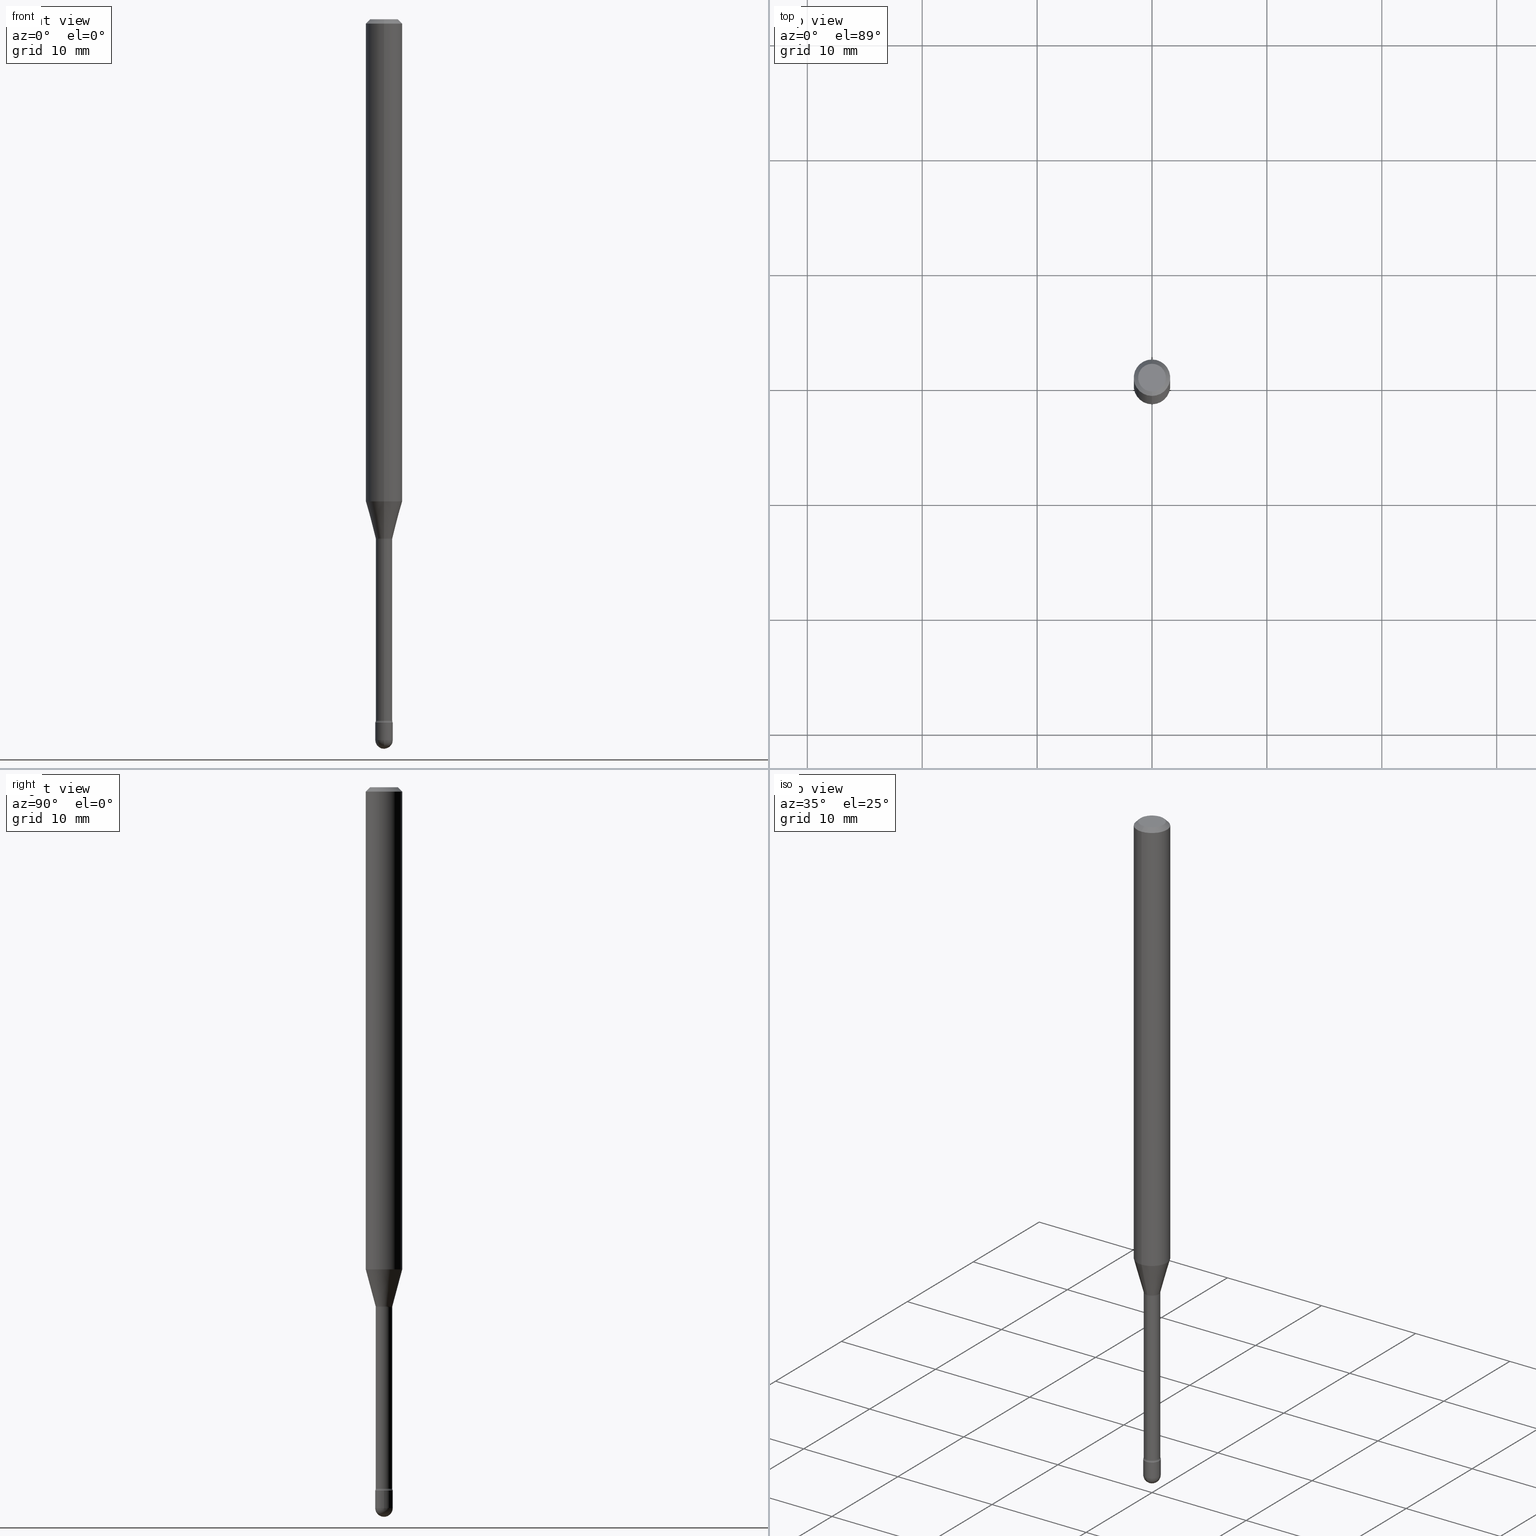
[diagram: canonical four-view strip — front | top / right | iso, engineering-drawing reading convention]
A machine part, canonical four-view strip (front | top / right | iso — engineering-drawing reading convention). The complete STEP part file that produces these views, byte-faithful:
ISO-10303-21;
HEADER;
FILE_DESCRIPTION (( 'STEP AP203' ),
    '1' );
FILE_NAME ('09490.STEP',
    '2024-04-09T23:47:46',
    ( '' ),
    ( '' ),
    'SwSTEP 2.0',
    'SolidWorks 2023',
    '' );
FILE_SCHEMA (( 'CONFIG_CONTROL_DESIGN' ));
ENDSEC;

DATA;
#1 = ORIENTED_EDGE ( 'NONE', *, *, #191, .F. ) ;
#2 = VECTOR ( 'NONE', #71, 39.37007874015748143 ) ;
#3 = AXIS2_PLACEMENT_3D ( 'NONE', #356, #314, #350 ) ;
#4 = CIRCLE ( 'NONE', #286, 0.01499999999999990750 ) ;
#5 = VERTEX_POINT ( 'NONE', #282 ) ;
#6 = CALENDAR_DATE ( 2024, 9, 4 ) ;
#7 = ORIENTED_EDGE ( 'NONE', *, *, #363, .F. ) ;
#8 = ORIENTED_EDGE ( 'NONE', *, *, #543, .T. ) ;
#9 = AXIS2_PLACEMENT_3D ( 'NONE', #182, #540, #53 ) ;
#10 = EDGE_CURVE ( 'NONE', #48, #227, #523, .T. ) ;
#11 = ORIENTED_EDGE ( 'NONE', *, *, #485, .F. ) ;
#12 = CONICAL_SURFACE ( 'NONE', #293, 0.02871111260566398468, 0.2617993877991500740 ) ;
#13 = ORIENTED_EDGE ( 'NONE', *, *, #194, .F. ) ;
#14 = CARTESIAN_POINT ( 'NONE',  ( 4.364351673553919652E-16, 0.06249999999999995143, -0.01500000000000030129 ) ) ;
#15 = DIRECTION ( 'NONE',  ( -2.445430871415166747E-29, 3.491535663592855480E-15, 1.000000000000000000 ) ) ;
#16 = DIRECTION ( 'NONE',  ( -6.982962677686265133E-15, -1.000000000000000000, 0.000000000000000000 ) ) ;
#17 = DIRECTION ( 'NONE',  ( -2.445430871415166747E-29, 3.491535663592855480E-15, 1.000000000000000000 ) ) ;
#18 = APPROVAL_ROLE ( '' ) ;
#19 = DIRECTION ( 'NONE',  ( 1.000000000000000000, -6.982962677686265922E-15, 4.883557194083112340E-29 ) ) ;
#20 = EDGE_CURVE ( 'NONE', #223, #5, #414, .T. ) ;
#21 = DIRECTION ( 'NONE',  ( -2.445430871415166747E-29, 3.491535663592855480E-15, 1.000000000000000000 ) ) ;
#22 = DATE_AND_TIME ( #65, #290 ) ;
#23 = EDGE_CURVE ( 'NONE', #231, #301, #262, .T. ) ;
#24 = PERSON_AND_ORGANIZATION ( #77, #141 ) ;
#25 = CARTESIAN_POINT ( 'NONE',  ( 4.039828952651802244E-29, -5.767984295886507210E-15, -1.651990657300387966 ) ) ;
#26 = AXIS2_PLACEMENT_3D ( 'NONE', #164, #161, #83 ) ;
#27 = CARTESIAN_POINT ( 'NONE',  ( -4.364351673553912750E-16, -0.06250000000000005551, -0.01499999999999986587 ) ) ;
#28 = LINE ( 'NONE', #367, #508 ) ;
#29 = CLOSED_SHELL ( 'NONE', ( #97, #406, #155, #518, #312 ) ) ;
#30 = ORIENTED_EDGE ( 'NONE', *, *, #109, .T. ) ;
#31 = DIRECTION ( 'NONE',  ( -6.982962677686266711E-15, -1.000000000000000000, 0.000000000000000000 ) ) ;
#32 = DIRECTION ( 'NONE',  ( -6.982962677686265922E-15, -1.000000000000000000, 3.491535663592855086E-15 ) ) ;
#33 = DIRECTION ( 'NONE',  ( 1.000000000000000000, -6.982962677686299054E-15, 0.000000000000000000 ) ) ;
#34 = DIRECTION ( 'NONE',  ( 6.982962677686265922E-15, 1.000000000000000000, -3.491535663592855086E-15 ) ) ;
#35 = AXIS2_PLACEMENT_3D ( 'NONE', #242, #424, #452 ) ;
#36 = DATE_AND_TIME ( #6, #168 ) ;
#37 = ADVANCED_FACE ( 'NONE', ( #505 ), #12, .T. ) ;
#38 = ORIENTED_EDGE ( 'NONE', *, *, #504, .F. ) ;
#39 = CARTESIAN_POINT ( 'NONE',  ( -2.004886277601557809E-16, -0.02871111260567019152, -1.778092501787273294 ) ) ;
#40 = LINE ( 'NONE', #562, #351 ) ;
#41 = EDGE_LOOP ( 'NONE', ( #431, #43, #486, #175 ) ) ;
#42 = LENGTH_MEASURE_WITH_UNIT ( LENGTH_MEASURE( 0.02539999999999999897 ), #147 );
#43 = ORIENTED_EDGE ( 'NONE', *, *, #191, .T. ) ;
#44 = LOCAL_TIME ( 19, 47, 46.00000000000000000, #134 ) ;
#45 = EDGE_LOOP ( 'NONE', ( #426, #355, #379, #136 ) ) ;
#46 = DIRECTION ( 'NONE',  ( -2.445430871415166747E-29, 3.491535663592855480E-15, 1.000000000000000000 ) ) ;
#47 = VECTOR ( 'NONE', #471, 39.37007874015748143 ) ;
#48 = VERTEX_POINT ( 'NONE', #90 ) ;
#49 = MANIFOLD_SOLID_BREP ( 'Body-Move/Copy2[1]', #29 ) ;
#50 = FACE_OUTER_BOUND ( 'NONE', #260, .T. ) ;
#51 = VERTEX_POINT ( 'NONE', #249 ) ;
#52 = ORIENTED_EDGE ( 'NONE', *, *, #391, .F. ) ;
#53 = DIRECTION ( 'NONE',  ( 6.982962677686265922E-15, 1.000000000000000000, -3.483106191921935554E-15 ) ) ;
#54 = CARTESIAN_POINT ( 'NONE',  ( 5.876156823005488124E-29, -8.389594600327224115E-15, -2.402875394747777893 ) ) ;
#55 = FACE_OUTER_BOUND ( 'NONE', #247, .T. ) ;
#56 = EDGE_CURVE ( 'NONE', #420, #274, #533, .T. ) ;
#57 = EDGE_LOOP ( 'NONE', ( #347, #531, #352, #139 ) ) ;
#58 = CONICAL_SURFACE ( 'NONE', #111, 0.02871111260566398468, 0.2617993877991500740 ) ;
#59 = DIRECTION ( 'NONE',  ( -4.851104656540964275E-15, -0.7071067811865500152, -0.7071067811865450192 ) ) ;
#60 = DIRECTION ( 'NONE',  ( -6.982962677686265922E-15, -1.000000000000000000, 3.491535663592855086E-15 ) ) ;
#61 = CARTESIAN_POINT ( 'NONE',  ( 6.040307951277287977E-29, -8.623958906942569995E-15, -2.470000000000000195 ) ) ;
#62 = DIRECTION ( 'NONE',  ( -6.982962677686265922E-15, -1.000000000000000000, 3.491535663592855086E-15 ) ) ;
#63 = PLANE ( 'NONE',  #464 ) ;
#64 = LINE ( 'NONE', #201, #123 ) ;
#65 = CALENDAR_DATE ( 2024, 9, 4 ) ;
#66 = AXIS2_PLACEMENT_3D ( 'NONE', #246, #148, #250 ) ;
#67 = CARTESIAN_POINT ( 'NONE',  ( -2.004886277601557809E-16, -0.02871111260567019152, -1.778092501787273294 ) ) ;
#68 = DIRECTION ( 'NONE',  ( -2.445430871415166747E-29, 3.491535663592855086E-15, 1.000000000000000000 ) ) ;
#69 = FACE_OUTER_BOUND ( 'NONE', #100, .T. ) ;
#70 = DATE_AND_TIME ( #254, #489 ) ;
#71 = DIRECTION ( 'NONE',  ( -2.445468806185136877E-29, 3.491481338843145188E-15, 1.000000000000000000 ) ) ;
#72 = AXIS2_PLACEMENT_3D ( 'NONE', #76, #368, #498 ) ;
#73 = AXIS2_PLACEMENT_3D ( 'NONE', #25, #284, #448 ) ;
#74 = ORIENTED_EDGE ( 'NONE', *, *, #272, .T. ) ;
#75 = DIRECTION ( 'NONE',  ( -6.982962677686265133E-15, -1.000000000000000000, 0.000000000000000000 ) ) ;
#76 = CARTESIAN_POINT ( 'NONE',  ( 0.000000000000000000, 0.000000000000000000, 0.000000000000000000 ) ) ;
#77 = PERSON ( 'UNSPECIFIED', 'UNSPECIFIED', 'UNSPECIFIED', ('UNSPECIFIED'), ('UNSPECIFIED'), ('UNSPECIFIED') ) ;
#78 = AXIS2_PLACEMENT_3D ( 'NONE', #157, #179, #225 ) ;
#79 = EDGE_LOOP ( 'NONE', ( #330, #30, #96, #13 ) ) ;
#80 = ORIENTED_EDGE ( 'NONE', *, *, #479, .F. ) ;
#81 = CARTESIAN_POINT ( 'NONE',  ( 5.893579822906179826E-29, -8.414470026611981678E-15, -2.410000000000000142 ) ) ;
#82 = EDGE_CURVE ( 'NONE', #344, #5, #423, .T. ) ;
#83 = DIRECTION ( 'NONE',  ( 6.982962677686265922E-15, 1.000000000000000000, 0.000000000000000000 ) ) ;
#84 = DATE_TIME_ROLE ( 'classification_date' ) ;
#85 = FACE_OUTER_BOUND ( 'NONE', #45, .T. ) ;
#86 = DESIGN_CONTEXT ( 'detailed design', #545, 'design' ) ;
#87 = AXIS2_PLACEMENT_3D ( 'NONE', #54, #519, #435 ) ;
#88 = DIRECTION ( 'NONE',  ( -6.982962677686265133E-15, -1.000000000000000000, 0.000000000000000000 ) ) ;
#89 = ORIENTED_EDGE ( 'NONE', *, *, #56, .T. ) ;
#90 = CARTESIAN_POINT ( 'NONE',  ( 2.094888803306483442E-16, 0.02999999999999137038, -2.470000000000000195 ) ) ;
#91 = ORIENTED_EDGE ( 'NONE', *, *, #112, .T. ) ;
#92 = EDGE_CURVE ( 'NONE', #5, #223, #451, .T. ) ;
#93 = EDGE_CURVE ( 'NONE', #344, #51, #4, .T. ) ;
#94 = ORIENTED_EDGE ( 'NONE', *, *, #82, .F. ) ;
#95 = DIRECTION ( 'NONE',  ( -2.438088387897960049E-29, 3.491481338843145188E-15, 1.000000000000000000 ) ) ;
#96 = ORIENTED_EDGE ( 'NONE', *, *, #532, .F. ) ;
#97 = ADVANCED_FACE ( 'NONE', ( #204 ), #294, .T. ) ;
#98 = CC_DESIGN_PERSON_AND_ORGANIZATION_ASSIGNMENT ( #565, #167, ( #240 ) ) ;
#99 = VERTEX_POINT ( 'NONE', #39 ) ;
#100 = EDGE_LOOP ( 'NONE', ( #313, #525 ) ) ;
#101 = CARTESIAN_POINT ( 'NONE',  ( -1.969195475106951401E-16, -0.02820000000000855503, -2.402875394747777893 ) ) ;
#102 = CARTESIAN_POINT ( 'NONE',  ( 4.039828952651802244E-29, -5.767984295886507210E-15, -1.651990657300387966 ) ) ;
#103 = VERTEX_POINT ( 'NONE', #469 ) ;
#104 = CARTESIAN_POINT ( 'NONE',  ( -1.169113584055446105E-44, 1.669184350826100908E-30, 4.780733988912460139E-16 ) ) ;
#105 = EDGE_CURVE ( 'NONE', #301, #231, #174, .T. ) ;
#106 = CIRCLE ( 'NONE', #548, 0.03000000000000000583 ) ;
#107 = DIRECTION ( 'NONE',  ( -6.982962677686265922E-15, -1.000000000000000000, 0.000000000000000000 ) ) ;
#108 = CARTESIAN_POINT ( 'NONE',  ( 2.131628207280886208E-16, 0.02999999999999152997, -2.410000000000000142 ) ) ;
#109 = EDGE_CURVE ( 'NONE', #442, #305, #528, .T. ) ;
#110 = DIRECTION ( 'NONE',  ( -2.445430871415166747E-29, 3.491535663592855480E-15, 1.000000000000000000 ) ) ;
#111 = AXIS2_PLACEMENT_3D ( 'NONE', #376, #125, #306 ) ;
#112 = EDGE_CURVE ( 'NONE', #227, #231, #216, .T. ) ;
#113 = DIRECTION ( 'NONE',  ( -6.982962677686265922E-15, -1.000000000000000000, 0.000000000000000000 ) ) ;
#114 = AXIS2_PLACEMENT_3D ( 'NONE', #381, #21, #334 ) ;
#115 = CARTESIAN_POINT ( 'NONE',  ( -1.969195475107532693E-16, -0.02820000000000008264, 5.765347046045648970E-16 ) ) ;
#116 = AXIS2_PLACEMENT_3D ( 'NONE', #462, #454, #506 ) ;
#117 = VERTEX_POINT ( 'NONE', #317 ) ;
#118 = DIRECTION ( 'NONE',  ( -2.445430871415166747E-29, 3.491535663592855480E-15, 1.000000000000000000 ) ) ;
#119 = ADVANCED_FACE ( 'NONE', ( #370 ), #58, .T. ) ;
#120 = DIRECTION ( 'NONE',  ( -6.982962677686266711E-15, -1.000000000000000000, 3.491535663592855480E-15 ) ) ;
#121 = APPROVAL_PERSON_ORGANIZATION ( #425, #251, #493 ) ;
#122 = DIRECTION ( 'NONE',  ( -2.445468806185136597E-29, 3.491481338843145583E-15, 1.000000000000000000 ) ) ;
#123 = VECTOR ( 'NONE', #411, 39.37007874015748143 ) ;
#124 = ORIENTED_EDGE ( 'NONE', *, *, #190, .F. ) ;
#125 = DIRECTION ( 'NONE',  ( -2.445430871415166747E-29, 3.491535663592855480E-15, 1.000000000000000000 ) ) ;
#126 = AXIS2_PLACEMENT_3D ( 'NONE', #102, #546, #534 ) ;
#127 = VERTEX_POINT ( 'NONE', #484 ) ;
#128 = CARTESIAN_POINT ( 'NONE',  ( 0.000000000000000000, 0.000000000000000000, 0.000000000000000000 ) ) ;
#129 = SECURITY_CLASSIFICATION_LEVEL ( 'unclassified' ) ;
#130 = ORIENTED_EDGE ( 'NONE', *, *, #208, .F. ) ;
#131 = ADVANCED_FACE ( 'NONE', ( #50 ), #345, .F. ) ;
#132 = DIRECTION ( 'NONE',  ( -6.982962677686266711E-15, -1.000000000000000000, 3.491535663592855480E-15 ) ) ;
#133 = PLANE ( 'NONE',  #210 ) ;
#134 = COORDINATED_UNIVERSAL_TIME_OFFSET ( 5, 0, .BEHIND. ) ;
#135 = ADVANCED_BREP_SHAPE_REPRESENTATION ( '09490', ( #49, #413, #72 ), #410 ) ;
#136 = ORIENTED_EDGE ( 'NONE', *, *, #20, .F. ) ;
#137 = AXIS2_PLACEMENT_3D ( 'NONE', #205, #153, #373 ) ;
#138 = ORIENTED_EDGE ( 'NONE', *, *, #496, .F. ) ;
#139 = ORIENTED_EDGE ( 'NONE', *, *, #177, .F. ) ;
#140 = CARTESIAN_POINT ( 'NONE',  ( -0.03000000000000000583, -8.306051646049246381E-15, -2.470000000000000195 ) ) ;
#141 = ORGANIZATION ( 'UNSPECIFIED', 'UNSPECIFIED', '' ) ;
#142 = CARTESIAN_POINT ( 'NONE',  ( 5.893579822906179826E-29, -8.414470026611981678E-15, -2.410000000000000142 ) ) ;
#143 = FACE_OUTER_BOUND ( 'NONE', #461, .T. ) ;
#144 = AXIS2_PLACEMENT_3D ( 'NONE', #397, #189, #185 ) ;
#145 = CARTESIAN_POINT ( 'NONE',  ( 0.03000000000000000583, -2.094888803305880457E-16, 1.462853032738781053E-30 ) ) ;
#146 = COORDINATED_UNIVERSAL_TIME_OFFSET ( 5, 0, .BEHIND. ) ;
#147 =( LENGTH_UNIT ( ) NAMED_UNIT ( * ) SI_UNIT ( $, .METRE. ) );
#148 = DIRECTION ( 'NONE',  ( -1.000000000000000000, 6.982962677686265922E-15, -4.883557194083112340E-29 ) ) ;
#149 = CC_DESIGN_DATE_AND_TIME_ASSIGNMENT ( #36, #84, ( #459 ) ) ;
#150 = DIRECTION ( 'NONE',  ( 1.000000000000000000, -7.105427357601001070E-15, 4.926316173828390833E-29 ) ) ;
#151 = PERSON_AND_ORGANIZATION ( #77, #141 ) ;
#152 = CIRCLE ( 'NONE', #427, 0.02999999999999997807 ) ;
#153 = DIRECTION ( 'NONE',  ( 2.445430871415166747E-29, -3.491535663592855480E-15, -1.000000000000000000 ) ) ;
#154 = AXIS2_PLACEMENT_3D ( 'NONE', #369, #552, #113 ) ;
#155 = ADVANCED_FACE ( 'NONE', ( #311 ), #133, .T. ) ;
#156 = ORIENTED_EDGE ( 'NONE', *, *, #199, .F. ) ;
#157 = CARTESIAN_POINT ( 'NONE',  ( 5.876065670480121665E-29, -8.389725135931628205E-15, -2.402875394747777893 ) ) ;
#158 = EDGE_LOOP ( 'NONE', ( #310, #482 ) ) ;
#159 = DIRECTION ( 'NONE',  ( 7.105427357601001859E-15, 1.000000000000000000, 0.000000000000000000 ) ) ;
#160 = AXIS2_PLACEMENT_3D ( 'NONE', #278, #324, #320 ) ;
#161 = DIRECTION ( 'NONE',  ( -1.000000000000000000, 6.982962677686265922E-15, -4.883557194083112340E-29 ) ) ;
#162 = CALENDAR_DATE ( 2024, 9, 4 ) ;
#163 = EDGE_LOOP ( 'NONE', ( #475, #212, #445, #335 ) ) ;
#164 = CARTESIAN_POINT ( 'NONE',  ( 6.040307951277287977E-29, -8.623958906942569995E-15, -2.470000000000000195 ) ) ;
#165 = ORIENTED_EDGE ( 'NONE', *, *, #93, .F. ) ;
#166 = DIRECTION ( 'NONE',  ( -6.982962677686265133E-15, -1.000000000000000000, 0.000000000000000000 ) ) ;
#167 = PERSON_AND_ORGANIZATION_ROLE ( 'creator' ) ;
#168 = LOCAL_TIME ( 19, 47, 46.00000000000000000, #421 ) ;
#169 = EDGE_CURVE ( 'NONE', #103, #48, #152, .T. ) ;
#170 = AXIS2_PLACEMENT_3D ( 'NONE', #338, #474, #547 ) ;
#171 = DATE_AND_TIME ( #162, #44 ) ;
#172 = ORIENTED_EDGE ( 'NONE', *, *, #177, .T. ) ;
#173 = VECTOR ( 'NONE', #383, 39.37007874015748143 ) ;
#174 = CIRCLE ( 'NONE', #221, 0.02999999999999999889 ) ;
#175 = ORIENTED_EDGE ( 'NONE', *, *, #10, .F. ) ;
#176 = ORIENTED_EDGE ( 'NONE', *, *, #23, .T. ) ;
#177 = EDGE_CURVE ( 'NONE', #305, #217, #512, .T. ) ;
#178 = AXIS2_PLACEMENT_3D ( 'NONE', #432, #46, #219 ) ;
#179 = DIRECTION ( 'NONE',  ( -2.445430871415166747E-29, 3.491535663592855480E-15, 1.000000000000000000 ) ) ;
#180 =( CONVERSION_BASED_UNIT ( 'INCH', #42 ) LENGTH_UNIT ( ) NAMED_UNIT ( #524 ) );
#181 = EDGE_LOOP ( 'NONE', ( #224, #465, #308, #393, #468 ) ) ;
#182 = CARTESIAN_POINT ( 'NONE',  ( 3.668146307122770334E-31, -5.237303495389312310E-17, -0.01500000000000008271 ) ) ;
#183 = AXIS2_PLACEMENT_3D ( 'NONE', #281, #403, #16 ) ;
#184 = ORIENTED_EDGE ( 'NONE', *, *, #554, .F. ) ;
#185 = DIRECTION ( 'NONE',  ( -6.982962677686265922E-15, -1.000000000000000000, 3.483106191921935554E-15 ) ) ;
#186 = CYLINDRICAL_SURFACE ( 'NONE', #361, 0.06250000000000000000 ) ;
#187 = ORIENTED_EDGE ( 'NONE', *, *, #105, .T. ) ;
#188 = CARTESIAN_POINT ( 'NONE',  ( 3.840629472727447874E-16, 0.04749999999999999362, -2.485923956665947867E-16 ) ) ;
#189 = DIRECTION ( 'NONE',  ( -2.445430871415166747E-29, 3.491535663592855480E-15, 1.000000000000000000 ) ) ;
#190 = EDGE_CURVE ( 'NONE', #99, #442, #492, .T. ) ;
#191 = EDGE_CURVE ( 'NONE', #103, #117, #302, .T. ) ;
#192 = CIRCLE ( 'NONE', #258, 0.01500000000000001853 ) ;
#193 = DIRECTION ( 'NONE',  ( -1.807323732225328562E-15, -0.2588190451025179639, 0.9659258262890690894 ) ) ;
#194 = EDGE_CURVE ( 'NONE', #99, #217, #285, .T. ) ;
#195 = COORDINATED_UNIVERSAL_TIME_OFFSET ( 5, 0, .BEHIND. ) ;
#196 = SPHERICAL_SURFACE ( 'NONE', #26, 0.02999999999999997807 ) ;
#197 = APPROVAL_STATUS ( 'not_yet_approved' ) ;
#198 = ADVANCED_FACE ( 'NONE', ( #55 ), #186, .T. ) ;
#199 = EDGE_CURVE ( 'NONE', #382, #416, #400, .T. ) ;
#200 = CARTESIAN_POINT ( 'NONE',  ( 5.893488400110552381E-29, -8.414600949258782082E-15, -2.410000000000000142 ) ) ;
#201 = CARTESIAN_POINT ( 'NONE',  ( -4.364351673553916201E-16, -0.06250000000000000000, 6.962943778657995554E-16 ) ) ;
#202 = CARTESIAN_POINT ( 'NONE',  ( 2.067679361062483248E-16, 0.02819999999999178025, -2.402875394747777893 ) ) ;
#203 = AXIS2_PLACEMENT_3D ( 'NONE', #467, #252, #33 ) ;
#204 = FACE_OUTER_BOUND ( 'NONE', #522, .T. ) ;
#205 = CARTESIAN_POINT ( 'NONE',  ( 3.668146307122770334E-31, -5.237303495389312310E-17, -0.01500000000000008271 ) ) ;
#206 = ORIENTED_EDGE ( 'NONE', *, *, #169, .T. ) ;
#207 = CIRCLE ( 'NONE', #299, 0.04749999999999999362 ) ;
#208 = EDGE_CURVE ( 'NONE', #117, #127, #318, .T. ) ;
#209 = DIRECTION ( 'NONE',  ( -2.445468806185136597E-29, 3.491481338843145583E-15, 1.000000000000000000 ) ) ;
#210 = AXIS2_PLACEMENT_3D ( 'NONE', #480, #95, #542 ) ;
#211 = CARTESIAN_POINT ( 'NONE',  ( 5.876065670480121665E-29, -8.389725135931628205E-15, -2.402875394747777893 ) ) ;
#212 = ORIENTED_EDGE ( 'NONE', *, *, #213, .F. ) ;
#213 = EDGE_CURVE ( 'NONE', #344, #420, #309, .T. ) ;
#214 = EDGE_CURVE ( 'NONE', #279, #416, #389, .T. ) ;
#215 = CARTESIAN_POINT ( 'NONE',  ( 3.069544618484225597E-16, 0.04319999999999168255, -2.402875394747778337 ) ) ;
#216 = LINE ( 'NONE', #460, #47 ) ;
#217 = VERTEX_POINT ( 'NONE', #357 ) ;
#218 = DIRECTION ( 'NONE',  ( 1.000000000000000000, -6.982962677686268288E-15, 0.000000000000000000 ) ) ;
#219 = DIRECTION ( 'NONE',  ( -6.982962677686265922E-15, -1.000000000000000000, 3.491535663592856663E-15 ) ) ;
#220 = UNCERTAINTY_MEASURE_WITH_UNIT (LENGTH_MEASURE( 1.000000000000000082E-05 ), #180, 'distance_accuracy_value', 'NONE');
#221 = AXIS2_PLACEMENT_3D ( 'NONE', #81, #209, #218 ) ;
#222 = PERSON_AND_ORGANIZATION ( #77, #141 ) ;
#223 = VERTEX_POINT ( 'NONE', #536 ) ;
#224 = ORIENTED_EDGE ( 'NONE', *, *, #112, .F. ) ;
#225 = DIRECTION ( 'NONE',  ( -6.982962677686265922E-15, -1.000000000000000000, 0.000000000000000000 ) ) ;
#226 = CONICAL_SURFACE ( 'NONE', #9, 0.06250000000000000000, 0.7853981633974483900 ) ;
#227 = VERTEX_POINT ( 'NONE', #140 ) ;
#228 = DIRECTION ( 'NONE',  ( -6.982962677686265922E-15, -1.000000000000000000, 3.483106191921935554E-15 ) ) ;
#229 = CARTESIAN_POINT ( 'NONE',  ( -1.169113584055446105E-44, 1.669184350826100908E-30, 4.780733988912460139E-16 ) ) ;
#230 = CLOSED_SHELL ( 'NONE', ( #455, #259, #131, #276, #343, #37, #119, #198, #360, #234, #273, #366, #341, #297 ) ) ;
#231 = VERTEX_POINT ( 'NONE', #315 ) ;
#232 = PRODUCT_RELATED_PRODUCT_CATEGORY ( 'detail', '', ( #450 ) ) ;
#233 = DIRECTION ( 'NONE',  ( -2.445468806185136597E-29, 3.491481338843145583E-15, 1.000000000000000000 ) ) ;
#234 = ADVANCED_FACE ( 'NONE', ( #447 ), #63, .F. ) ;
#235 = CARTESIAN_POINT ( 'NONE',  ( -3.773273898774340269E-16, -0.04749999999999999362, 8.310349237472643215E-17 ) ) ;
#236 = APPROVAL_PERSON_ORGANIZATION ( #24, #346, #325 ) ;
#237 = LINE ( 'NONE', #530, #434 ) ;
#238 = MECHANICAL_CONTEXT ( 'NONE', #275, 'mechanical' ) ;
#239 = CARTESIAN_POINT ( 'NONE',  ( 6.040307951277287977E-29, -8.623958906942569995E-15, -2.470000000000000195 ) ) ;
#240 = PRODUCT_DEFINITION ( 'UNKNOWN', '', #566, #86 ) ;
#241 = AXIS2_PLACEMENT_3D ( 'NONE', #537, #15, #358 ) ;
#242 = CARTESIAN_POINT ( 'NONE',  ( 6.040307951277287977E-29, -8.623958906942569995E-15, -2.470000000000000195 ) ) ;
#243 = FACE_OUTER_BOUND ( 'NONE', #263, .T. ) ;
#244 = CARTESIAN_POINT ( 'NONE',  ( 2.040047249754913233E-16, 0.02871111260565777784, -1.778092501787273294 ) ) ;
#245 = CARTESIAN_POINT ( 'NONE',  ( 2.023277008888713528E-45, -2.889311751039514429E-31, -8.274445164593418344E-17 ) ) ;
#246 = CARTESIAN_POINT ( 'NONE',  ( -3.016639876760031283E-16, -0.04320000000000622647, -1.781974787463810994 ) ) ;
#247 = EDGE_LOOP ( 'NONE', ( #184, #172, #8, #7 ) ) ;
#248 = VECTOR ( 'NONE', #193, 39.37007874015748854 ) ;
#249 = CARTESIAN_POINT ( 'NONE',  ( -2.094888803305286593E-16, -0.03000000000000836373, -2.410000000000000142 ) ) ;
#250 = DIRECTION ( 'NONE',  ( -6.982962677686267499E-15, -1.000000000000000000, 0.000000000000000000 ) ) ;
#251 = APPROVAL ( #333, 'UNSPECIFIED' ) ;
#252 = DIRECTION ( 'NONE',  ( -2.445468806185136597E-29, 3.491481338843145583E-15, 1.000000000000000000 ) ) ;
#253 = ORIENTED_EDGE ( 'NONE', *, *, #272, .F. ) ;
#254 = CALENDAR_DATE ( 2024, 9, 4 ) ;
#255 = ORIENTED_EDGE ( 'NONE', *, *, #363, .T. ) ;
#256 = AXIS2_PLACEMENT_3D ( 'NONE', #456, #17, #405 ) ;
#257 = FACE_OUTER_BOUND ( 'NONE', #181, .T. ) ;
#258 = AXIS2_PLACEMENT_3D ( 'NONE', #364, #150, #516 ) ;
#259 = ADVANCED_FACE ( 'NONE', ( #377 ), #549, .T. ) ;
#260 = EDGE_LOOP ( 'NONE', ( #80, #89, #521, #165 ) ) ;
#261 = CYLINDRICAL_SURFACE ( 'NONE', #178, 0.02820000000000008264 ) ;
#262 = CIRCLE ( 'NONE', #398, 0.02999999999999999889 ) ;
#263 = EDGE_LOOP ( 'NONE', ( #477, #563, #329, #156 ) ) ;
#264 =( NAMED_UNIT ( * ) PLANE_ANGLE_UNIT ( ) SI_UNIT ( $, .RADIAN. ) );
#265 = PERSON_AND_ORGANIZATION ( #77, #141 ) ;
#266 = ORIENTED_EDGE ( 'NONE', *, *, #532, .T. ) ;
#267 = CIRCLE ( 'NONE', #256, 0.04749999999999999362 ) ;
#268 = CC_DESIGN_SECURITY_CLASSIFICATION ( #459, ( #566 ) ) ;
#269 = CC_DESIGN_PERSON_AND_ORGANIZATION_ASSIGNMENT ( #265, #481, ( #566 ) ) ;
#270 = APPROVAL_DATE_TIME ( #171, #346 ) ;
#271 = ORIENTED_EDGE ( 'NONE', *, *, #409, .F. ) ;
#272 = EDGE_CURVE ( 'NONE', #99, #5, #541, .T. ) ;
#273 = ADVANCED_FACE ( 'NONE', ( #69 ), #412, .F. ) ;
#274 = VERTEX_POINT ( 'NONE', #108 ) ;
#275 = APPLICATION_CONTEXT ( 'configuration controlled 3d designs of mechanical parts and assemblies' ) ;
#276 = ADVANCED_FACE ( 'NONE', ( #243 ), #380, .T. ) ;
#277 = ORIENTED_EDGE ( 'NONE', *, *, #213, .T. ) ;
#278 = CARTESIAN_POINT ( 'NONE',  ( 6.040307951277287977E-29, -8.623958906942569995E-15, -2.470000000000000195 ) ) ;
#279 = VERTEX_POINT ( 'NONE', #27 ) ;
#280 = CARTESIAN_POINT ( 'NONE',  ( 3.668146307122770334E-31, -5.237303495389312310E-17, -0.01500000000000008271 ) ) ;
#281 = CARTESIAN_POINT ( 'NONE',  ( 4.348202296102425103E-29, -6.208273383157308080E-15, -1.778092501787273294 ) ) ;
#282 = CARTESIAN_POINT ( 'NONE',  ( -1.969195475107091177E-16, -0.02820000000000622356, -1.781974787463811216 ) ) ;
#283 = FACE_OUTER_BOUND ( 'NONE', #163, .T. ) ;
#284 = DIRECTION ( 'NONE',  ( -2.445430871415166747E-29, 3.491535663592855480E-15, 1.000000000000000000 ) ) ;
#285 = LINE ( 'NONE', #67, #248 ) ;
#286 = AXIS2_PLACEMENT_3D ( 'NONE', #386, #417, #31 ) ;
#287 = DIRECTION ( 'NONE',  ( -6.982962677686265922E-15, -1.000000000000000000, 0.000000000000000000 ) ) ;
#288 = CARTESIAN_POINT ( 'NONE',  ( 3.240469674127972582E-16, 0.02871111260565777784, -1.778092501787273294 ) ) ;
#289 = CARTESIAN_POINT ( 'NONE',  ( 0.02999999999999999889, -8.623958906942569995E-15, -2.410000000000000142 ) ) ;
#290 = LOCAL_TIME ( 19, 47, 46.00000000000000000, #146 ) ;
#291 = ORIENTED_EDGE ( 'NONE', *, *, #554, .T. ) ;
#292 = CIRCLE ( 'NONE', #73, 0.06250000000000000000 ) ;
#293 = AXIS2_PLACEMENT_3D ( 'NONE', #511, #559, #75 ) ;
#294 = CYLINDRICAL_SURFACE ( 'NONE', #354, 0.03000000000000000583 ) ;
#295 = DIRECTION ( 'NONE',  ( 1.000000000000000000, -6.982962677686266711E-15, 4.876176775795935793E-29 ) ) ;
#296 = EDGE_CURVE ( 'NONE', #51, #274, #483, .T. ) ;
#297 = ADVANCED_FACE ( 'NONE', ( #556 ), #362, .F. ) ;
#298 = DIRECTION ( 'NONE',  ( -2.445430871415166747E-29, 3.491535663592855480E-15, 1.000000000000000000 ) ) ;
#299 = AXIS2_PLACEMENT_3D ( 'NONE', #245, #322, #120 ) ;
#300 = CARTESIAN_POINT ( 'NONE',  ( 6.040307951277287977E-29, -8.623958906942569995E-15, -2.470000000000000195 ) ) ;
#301 = VERTEX_POINT ( 'NONE', #289 ) ;
#302 = CIRCLE ( 'NONE', #160, 0.02999999999999997807 ) ;
#303 = EDGE_LOOP ( 'NONE', ( #266, #291, #440, #529 ) ) ;
#304 = DIRECTION ( 'NONE',  ( 1.000000000000000000, -6.982962677686266711E-15, 4.876176775795935793E-29 ) ) ;
#305 = VERTEX_POINT ( 'NONE', #429 ) ;
#306 = DIRECTION ( 'NONE',  ( -6.982962677686265133E-15, -1.000000000000000000, 0.000000000000000000 ) ) ;
#307 = PERSON_AND_ORGANIZATION ( #77, #141 ) ;
#308 = ORIENTED_EDGE ( 'NONE', *, *, #208, .T. ) ;
#309 = CIRCLE ( 'NONE', #78, 0.02820000000000016938 ) ;
#310 = ORIENTED_EDGE ( 'NONE', *, *, #504, .T. ) ;
#311 = FACE_OUTER_BOUND ( 'NONE', #510, .T. ) ;
#312 = ADVANCED_FACE ( 'NONE', ( #257 ), #473, .T. ) ;
#313 = ORIENTED_EDGE ( 'NONE', *, *, #296, .F. ) ;
#314 = DIRECTION ( 'NONE',  ( -2.445430871415166747E-29, 3.491535663592855480E-15, 1.000000000000000000 ) ) ;
#315 = CARTESIAN_POINT ( 'NONE',  ( -0.02999999999999999889, -8.306051646049246381E-15, -2.410000000000000142 ) ) ;
#316 = DIRECTION ( 'NONE',  ( -2.445468806185136597E-29, 3.491481338843145583E-15, 1.000000000000000000 ) ) ;
#317 = CARTESIAN_POINT ( 'NONE',  ( -2.131628207279695521E-16, -0.03000000000000861353, -2.470000000000000195 ) ) ;
#318 = CIRCLE ( 'NONE', #203, 0.03000000000000000583 ) ;
#319 = CIRCLE ( 'NONE', #170, 0.03000000000000000583 ) ;
#320 = DIRECTION ( 'NONE',  ( -7.105427357601001070E-15, -1.000000000000000000, 0.000000000000000000 ) ) ;
#321 = AXIS2_PLACEMENT_3D ( 'NONE', #128, #122, #304 ) ;
#322 = DIRECTION ( 'NONE',  ( -2.445430871415166747E-29, 3.491535663592855480E-15, 1.000000000000000000 ) ) ;
#323 = CC_DESIGN_APPROVAL ( #251, ( #459 ) ) ;
#324 = DIRECTION ( 'NONE',  ( -1.000000000000000000, 7.105427357601001070E-15, -4.926315508542082329E-29 ) ) ;
#325 = APPROVAL_ROLE ( '' ) ;
#326 = SPHERICAL_SURFACE ( 'NONE', #35, 0.02999999999999997807 ) ;
#327 = DATE_TIME_ROLE ( 'creation_date' ) ;
#328 = APPROVAL_PERSON_ORGANIZATION ( #151, #419, #18 ) ;
#329 = ORIENTED_EDGE ( 'NONE', *, *, #214, .T. ) ;
#330 = ORIENTED_EDGE ( 'NONE', *, *, #190, .T. ) ;
#331 = DIRECTION ( 'NONE',  ( -2.445468806185136597E-29, 3.491481338843145583E-15, 1.000000000000000000 ) ) ;
#332 = CC_DESIGN_PERSON_AND_ORGANIZATION_ASSIGNMENT ( #307, #342, ( #566 ) ) ;
#333 = APPROVAL_STATUS ( 'not_yet_approved' ) ;
#334 = DIRECTION ( 'NONE',  ( -6.982962677686266711E-15, -1.000000000000000000, 3.491535663592855480E-15 ) ) ;
#335 = ORIENTED_EDGE ( 'NONE', *, *, #296, .T. ) ;
#336 = DIRECTION ( 'NONE',  ( 1.000000000000000000, -7.105427357601001070E-15, 4.926316173828390833E-29 ) ) ;
#337 = AXIS2_PLACEMENT_3D ( 'NONE', #104, #487, #62 ) ;
#338 = CARTESIAN_POINT ( 'NONE',  ( 6.040307951277287977E-29, -8.623958906942569995E-15, -2.470000000000000195 ) ) ;
#339 = ORIENTED_EDGE ( 'NONE', *, *, #105, .F. ) ;
#340 = TOROIDAL_SURFACE ( 'NONE', #3, 0.04320000000000007861, 0.01499999999999990750 ) ;
#341 = ADVANCED_FACE ( 'NONE', ( #85 ), #261, .T. ) ;
#342 = PERSON_AND_ORGANIZATION_ROLE ( 'creator' ) ;
#343 = ADVANCED_FACE ( 'NONE', ( #348 ), #494, .T. ) ;
#344 = VERTEX_POINT ( 'NONE', #101 ) ;
#345 = TOROIDAL_SURFACE ( 'NONE', #87, 0.04320000000000007861, 0.01499999999999990750 ) ;
#346 = APPROVAL ( #503, 'UNSPECIFIED' ) ;
#347 = ORIENTED_EDGE ( 'NONE', *, *, #109, .F. ) ;
#348 = FACE_OUTER_BOUND ( 'NONE', #303, .T. ) ;
#349 = VERTEX_POINT ( 'NONE', #235 ) ;
#350 = DIRECTION ( 'NONE',  ( -6.982962677686265922E-15, -1.000000000000000000, 3.491535663592855480E-15 ) ) ;
#351 = VECTOR ( 'NONE', #68, 39.37007874015748143 ) ;
#352 = ORIENTED_EDGE ( 'NONE', *, *, #194, .T. ) ;
#353 = DIRECTION ( 'NONE',  ( -2.445430871415166747E-29, 3.491535663592855480E-15, 1.000000000000000000 ) ) ;
#354 = AXIS2_PLACEMENT_3D ( 'NONE', #466, #331, #295 ) ;
#355 = ORIENTED_EDGE ( 'NONE', *, *, #479, .T. ) ;
#356 = CARTESIAN_POINT ( 'NONE',  ( 5.876156823005488124E-29, -8.389594600327224115E-15, -2.402875394747777893 ) ) ;
#357 = CARTESIAN_POINT ( 'NONE',  ( -4.364351673553514375E-16, -0.06250000000000580092, -1.651990657300387744 ) ) ;
#358 = DIRECTION ( 'NONE',  ( -6.982962677686265133E-15, -1.000000000000000000, 0.000000000000000000 ) ) ;
#359 = DIRECTION ( 'NONE',  ( 4.937700262164548042E-15, 0.7071067811865451302, -0.7071067811865499042 ) ) ;
#360 = ADVANCED_FACE ( 'NONE', ( #143 ), #226, .T. ) ;
#361 = AXIS2_PLACEMENT_3D ( 'NONE', #229, #444, #60 ) ;
#362 = TOROIDAL_SURFACE ( 'NONE', #514, 0.04320000000000000229, 0.01500000000000002373 ) ;
#363 = EDGE_CURVE ( 'NONE', #416, #279, #517, .T. ) ;
#364 = CARTESIAN_POINT ( 'NONE',  ( 3.069544618484067825E-16, 0.04319999999999377810, -1.781974787463811438 ) ) ;
#365 = DIRECTION ( 'NONE',  ( 6.982962677686265922E-15, 1.000000000000000000, 0.000000000000000000 ) ) ;
#366 = ADVANCED_FACE ( 'NONE', ( #283 ), #340, .F. ) ;
#367 = CARTESIAN_POINT ( 'NONE',  ( 4.440892098500625669E-16, 0.06250000000000000000, 2.598524199166925711E-16 ) ) ;
#368 = DIRECTION ( 'NONE',  ( 0.000000000000000000, 0.000000000000000000, 1.000000000000000000 ) ) ;
#369 = CARTESIAN_POINT ( 'NONE',  ( 5.893488400110552381E-29, -8.414600949258782082E-15, -2.410000000000000142 ) ) ;
#370 = FACE_OUTER_BOUND ( 'NONE', #57, .T. ) ;
#371 = DIRECTION ( 'NONE',  ( -2.445430871415166747E-29, 3.491535663592855086E-15, 1.000000000000000000 ) ) ;
#372 = COORDINATED_UNIVERSAL_TIME_OFFSET ( 5, 0, .BEHIND. ) ;
#373 = DIRECTION ( 'NONE',  ( 6.982962677686265922E-15, 1.000000000000000000, -3.483106191921935554E-15 ) ) ;
#374 = EDGE_CURVE ( 'NONE', #349, #279, #237, .T. ) ;
#375 = AXIS2_PLACEMENT_3D ( 'NONE', #280, #353, #228 ) ;
#376 = CARTESIAN_POINT ( 'NONE',  ( 4.348202296102425103E-29, -6.208273383157308080E-15, -1.778092501787273294 ) ) ;
#377 = FACE_OUTER_BOUND ( 'NONE', #535, .T. ) ;
#378 = FACE_OUTER_BOUND ( 'NONE', #41, .T. ) ;
#379 = ORIENTED_EDGE ( 'NONE', *, *, #82, .T. ) ;
#380 = CONICAL_SURFACE ( 'NONE', #137, 0.06250000000000000000, 0.7853981633974483900 ) ;
#381 = CARTESIAN_POINT ( 'NONE',  ( 4.357763756151139053E-29, -6.221731716718877342E-15, -1.781974787463811216 ) ) ;
#382 = VERTEX_POINT ( 'NONE', #188 ) ;
#383 = DIRECTION ( 'NONE',  ( -2.445430871415166747E-29, 3.491535663592855086E-15, 1.000000000000000000 ) ) ;
#384 = AXIS2_PLACEMENT_3D ( 'NONE', #497, #298, #88 ) ;
#385 = CC_DESIGN_APPROVAL ( #346, ( #566 ) ) ;
#386 = CARTESIAN_POINT ( 'NONE',  ( -3.016639876759884357E-16, -0.04320000000000846774, -2.402875394747777893 ) ) ;
#387 = CIRCLE ( 'NONE', #422, 0.02999999999999999889 ) ;
#388 = ORIENTED_EDGE ( 'NONE', *, *, #409, .T. ) ;
#389 = CIRCLE ( 'NONE', #144, 0.06250000000000000000 ) ;
#390 = PERSON_AND_ORGANIZATION_ROLE ( 'classification_officer' ) ;
#391 = EDGE_CURVE ( 'NONE', #442, #99, #441, .T. ) ;
#392 = ORIENTED_EDGE ( 'NONE', *, *, #92, .T. ) ;
#393 = ORIENTED_EDGE ( 'NONE', *, *, #496, .T. ) ;
#394 = EDGE_CURVE ( 'NONE', #227, #117, #106, .T. ) ;
#395 = EDGE_CURVE ( 'NONE', #349, #382, #267, .T. ) ;
#396 = EDGE_LOOP ( 'NONE', ( #11, #124, #74, #392 ) ) ;
#397 = CARTESIAN_POINT ( 'NONE',  ( 3.668146307122770334E-31, -5.237303495389312310E-17, -0.01500000000000008271 ) ) ;
#398 = AXIS2_PLACEMENT_3D ( 'NONE', #142, #316, #490 ) ;
#399 = ORIENTED_EDGE ( 'NONE', *, *, #374, .F. ) ;
#400 = LINE ( 'NONE', #14, #443 ) ;
#401 = DIRECTION ( 'NONE',  ( 1.000000000000000000, -6.982962677686299054E-15, 0.000000000000000000 ) ) ;
#402 = CARTESIAN_POINT ( 'NONE',  ( 3.316907271900976096E-16, 0.04749999999999999362, 3.181652960199534896E-17 ) ) ;
#403 = DIRECTION ( 'NONE',  ( -2.445430871415166747E-29, 3.491535663592855480E-15, 1.000000000000000000 ) ) ;
#404 = DIRECTION ( 'NONE',  ( 1.000000000000000000, -6.982962677686299054E-15, 0.000000000000000000 ) ) ;
#405 = DIRECTION ( 'NONE',  ( -6.982962677686266711E-15, -1.000000000000000000, 3.491535663592855480E-15 ) ) ;
#406 = ADVANCED_FACE ( 'NONE', ( #378 ), #196, .T. ) ;
#407 = CC_DESIGN_DATE_AND_TIME_ASSIGNMENT ( #70, #327, ( #240 ) ) ;
#408 = DIRECTION ( 'NONE',  ( -2.445468806185136597E-29, 3.491481338843145583E-15, 1.000000000000000000 ) ) ;
#409 = EDGE_CURVE ( 'NONE', #127, #48, #319, .T. ) ;
#410 =( GEOMETRIC_REPRESENTATION_CONTEXT ( 3 ) GLOBAL_UNCERTAINTY_ASSIGNED_CONTEXT ( ( #220 ) ) GLOBAL_UNIT_ASSIGNED_CONTEXT ( ( #180, #264, #539 ) ) REPRESENTATION_CONTEXT ( 'NONE', 'WORKASPACE' ) );
#411 = DIRECTION ( 'NONE',  ( -2.445430871415166747E-29, 3.491535663592855086E-15, 1.000000000000000000 ) ) ;
#412 = PLANE ( 'NONE',  #437 ) ;
#413 = MANIFOLD_SOLID_BREP ( 'Body-Move/Copy2[2]', #230 ) ;
#414 = CIRCLE ( 'NONE', #241, 0.02820000000000000284 ) ;
#415 = AXIS2_PLACEMENT_3D ( 'NONE', #61, #233, #401 ) ;
#416 = VERTEX_POINT ( 'NONE', #520 ) ;
#417 = DIRECTION ( 'NONE',  ( -1.000000000000000000, 6.982962677686265922E-15, -4.883557194083112340E-29 ) ) ;
#418 = SHAPE_DEFINITION_REPRESENTATION ( #491, #135 ) ;
#419 = APPROVAL ( #197, 'UNSPECIFIED' ) ;
#420 = VERTEX_POINT ( 'NONE', #202 ) ;
#421 = COORDINATED_UNIVERSAL_TIME_OFFSET ( 5, 0, .BEHIND. ) ;
#422 = AXIS2_PLACEMENT_3D ( 'NONE', #200, #500, #107 ) ;
#423 = LINE ( 'NONE', #115, #173 ) ;
#424 = DIRECTION ( 'NONE',  ( -1.000000000000000000, 6.982962677686265922E-15, -4.883557194083112340E-29 ) ) ;
#425 = PERSON_AND_ORGANIZATION ( #77, #141 ) ;
#426 = ORIENTED_EDGE ( 'NONE', *, *, #526, .F. ) ;
#427 = AXIS2_PLACEMENT_3D ( 'NONE', #239, #19, #365 ) ;
#428 = EDGE_LOOP ( 'NONE', ( #52, #488, #439, #253 ) ) ;
#429 = CARTESIAN_POINT ( 'NONE',  ( 4.440892098501027495E-16, 0.06249999999999421296, -1.651990657300388188 ) ) ;
#430 = LOCAL_TIME ( 19, 47, 46.00000000000000000, #372 ) ;
#431 = ORIENTED_EDGE ( 'NONE', *, *, #169, .F. ) ;
#432 = CARTESIAN_POINT ( 'NONE',  ( -1.169113584055446105E-44, 1.669184350826100908E-30, 4.780733988912460139E-16 ) ) ;
#433 = AXIS2_PLACEMENT_3D ( 'NONE', #211, #110, #287 ) ;
#434 = VECTOR ( 'NONE', #59, 39.37007874015748143 ) ;
#435 = DIRECTION ( 'NONE',  ( -6.982962677686265922E-15, -1.000000000000000000, 3.491535663592855480E-15 ) ) ;
#436 = EDGE_LOOP ( 'NONE', ( #1, #206, #271, #130 ) ) ;
#437 = AXIS2_PLACEMENT_3D ( 'NONE', #560, #371, #32 ) ;
#438 = CC_DESIGN_PERSON_AND_ORGANIZATION_ASSIGNMENT ( #551, #501, ( #450 ) ) ;
#439 = ORIENTED_EDGE ( 'NONE', *, *, #20, .T. ) ;
#440 = ORIENTED_EDGE ( 'NONE', *, *, #214, .F. ) ;
#441 = CIRCLE ( 'NONE', #384, 0.02871111260566398468 ) ;
#442 = VERTEX_POINT ( 'NONE', #288 ) ;
#443 = VECTOR ( 'NONE', #359, 39.37007874015748143 ) ;
#444 = DIRECTION ( 'NONE',  ( -2.445430871415166747E-29, 3.491535663592855480E-15, 1.000000000000000000 ) ) ;
#445 = ORIENTED_EDGE ( 'NONE', *, *, #93, .T. ) ;
#446 = CC_DESIGN_PERSON_AND_ORGANIZATION_ASSIGNMENT ( #222, #390, ( #459 ) ) ;
#447 = FACE_OUTER_BOUND ( 'NONE', #158, .T. ) ;
#448 = DIRECTION ( 'NONE',  ( -6.982962677686265922E-15, -1.000000000000000000, 4.370956789862821150E-15 ) ) ;
#449 = APPLICATION_PROTOCOL_DEFINITION ( 'international standard', 'config_control_design', 1994, #545 ) ;
#450 = PRODUCT ( '09490', '09490', '', ( #238 ) ) ;
#451 = CIRCLE ( 'NONE', #561, 0.02820000000000000284 ) ;
#452 = DIRECTION ( 'NONE',  ( 6.982962677686265922E-15, 1.000000000000000000, 0.000000000000000000 ) ) ;
#453 = APPLICATION_PROTOCOL_DEFINITION ( 'international standard', 'config_control_design', 1994, #275 ) ;
#454 = DIRECTION ( 'NONE',  ( -2.445430871415166747E-29, 3.491535663592855480E-15, 1.000000000000000000 ) ) ;
#455 = ADVANCED_FACE ( 'NONE', ( #495 ), #538, .F. ) ;
#456 = CARTESIAN_POINT ( 'NONE',  ( 2.023277008888713528E-45, -2.889311751039514429E-31, -8.274445164593418344E-17 ) ) ;
#457 = CARTESIAN_POINT ( 'NONE',  ( 4.357763756151139053E-29, -6.221731716718877342E-15, -1.781974787463811216 ) ) ;
#458 = CALENDAR_DATE ( 2024, 9, 4 ) ;
#459 = SECURITY_CLASSIFICATION ( '', '', #129 ) ;
#460 = CARTESIAN_POINT ( 'NONE',  ( -0.03000000000000000583, 2.131628207280300972E-16, -1.475680527076471882E-30 ) ) ;
#461 = EDGE_LOOP ( 'NONE', ( #399, #38, #555, #255 ) ) ;
#462 = CARTESIAN_POINT ( 'NONE',  ( -1.169113584055446105E-44, 1.669184350826100908E-30, 4.780733988912460139E-16 ) ) ;
#463 = APPROVAL_DATE_TIME ( #553, #251 ) ;
#464 = AXIS2_PLACEMENT_3D ( 'NONE', #402, #502, #34 ) ;
#465 = ORIENTED_EDGE ( 'NONE', *, *, #394, .T. ) ;
#466 = CARTESIAN_POINT ( 'NONE',  ( 0.000000000000000000, 0.000000000000000000, 0.000000000000000000 ) ) ;
#467 = CARTESIAN_POINT ( 'NONE',  ( 6.040307951277287977E-29, -8.623958906942569995E-15, -2.470000000000000195 ) ) ;
#468 = ORIENTED_EDGE ( 'NONE', *, *, #23, .F. ) ;
#469 = CARTESIAN_POINT ( 'NONE',  ( 6.114954764896610855E-29, -8.726866376909143979E-15, -2.500000000000000000 ) ) ;
#470 = APPROVAL_DATE_TIME ( #22, #419 ) ;
#471 = DIRECTION ( 'NONE',  ( -2.445468806185136877E-29, 3.491481338843145188E-15, 1.000000000000000000 ) ) ;
#472 = FACE_OUTER_BOUND ( 'NONE', #436, .T. ) ;
#473 = CYLINDRICAL_SURFACE ( 'NONE', #321, 0.03000000000000000583 ) ;
#474 = DIRECTION ( 'NONE',  ( -2.445468806185136597E-29, 3.491481338843145583E-15, 1.000000000000000000 ) ) ;
#475 = ORIENTED_EDGE ( 'NONE', *, *, #56, .F. ) ;
#476 = AXIS2_PLACEMENT_3D ( 'NONE', #215, #336, #159 ) ;
#477 = ORIENTED_EDGE ( 'NONE', *, *, #395, .F. ) ;
#478 = ORIENTED_EDGE ( 'NONE', *, *, #10, .T. ) ;
#479 = EDGE_CURVE ( 'NONE', #420, #344, #557, .T. ) ;
#480 = CARTESIAN_POINT ( 'NONE',  ( 5.893579822906179826E-29, -8.414470026611981678E-15, -2.410000000000000142 ) ) ;
#481 = PERSON_AND_ORGANIZATION_ROLE ( 'design_supplier' ) ;
#482 = ORIENTED_EDGE ( 'NONE', *, *, #395, .T. ) ;
#483 = CIRCLE ( 'NONE', #154, 0.02999999999999999889 ) ;
#484 = CARTESIAN_POINT ( 'NONE',  ( 0.03000000000000000583, -8.728703347107864943E-15, -2.470000000000000195 ) ) ;
#485 = EDGE_CURVE ( 'NONE', #442, #223, #192, .T. ) ;
#486 = ORIENTED_EDGE ( 'NONE', *, *, #394, .F. ) ;
#487 = DIRECTION ( 'NONE',  ( -2.445430871415166747E-29, 3.491535663592855480E-15, 1.000000000000000000 ) ) ;
#488 = ORIENTED_EDGE ( 'NONE', *, *, #485, .T. ) ;
#489 = LOCAL_TIME ( 19, 47, 46.00000000000000000, #195 ) ;
#490 = DIRECTION ( 'NONE',  ( 1.000000000000000000, -6.982962677686268288E-15, 0.000000000000000000 ) ) ;
#491 = PRODUCT_DEFINITION_SHAPE ( 'NONE', 'NONE',  #240 ) ;
#492 = CIRCLE ( 'NONE', #183, 0.02871111260566398468 ) ;
#493 = APPROVAL_ROLE ( '' ) ;
#494 = CYLINDRICAL_SURFACE ( 'NONE', #337, 0.06250000000000000000 ) ;
#495 = FACE_OUTER_BOUND ( 'NONE', #428, .T. ) ;
#496 = EDGE_CURVE ( 'NONE', #127, #301, #544, .T. ) ;
#497 = CARTESIAN_POINT ( 'NONE',  ( 4.348202296102425103E-29, -6.208273383157308080E-15, -1.778092501787273294 ) ) ;
#498 = DIRECTION ( 'NONE',  ( 1.000000000000000000, 0.000000000000000000, 0.000000000000000000 ) ) ;
#499 = VECTOR ( 'NONE', #509, 39.37007874015748854 ) ;
#500 = DIRECTION ( 'NONE',  ( -2.445430871415166747E-29, 3.491535663592855480E-15, 1.000000000000000000 ) ) ;
#501 = PERSON_AND_ORGANIZATION_ROLE ( 'design_owner' ) ;
#502 = DIRECTION ( 'NONE',  ( 2.445430871415166747E-29, -3.491535663592855086E-15, -1.000000000000000000 ) ) ;
#503 = APPROVAL_STATUS ( 'not_yet_approved' ) ;
#504 = EDGE_CURVE ( 'NONE', #382, #349, #207, .T. ) ;
#505 = FACE_OUTER_BOUND ( 'NONE', #79, .T. ) ;
#506 = DIRECTION ( 'NONE',  ( -6.982962677686265922E-15, -1.000000000000000000, 3.491535663592856663E-15 ) ) ;
#507 = CC_DESIGN_APPROVAL ( #419, ( #240 ) ) ;
#508 = VECTOR ( 'NONE', #550, 39.37007874015748143 ) ;
#509 = DIRECTION ( 'NONE',  ( 1.839019923739598738E-15, 0.2588190451025247363, 0.9659258262890673130 ) ) ;
#510 = EDGE_LOOP ( 'NONE', ( #187, #176 ) ) ;
#511 = CARTESIAN_POINT ( 'NONE',  ( 4.348202296102425103E-29, -6.208273383157308080E-15, -1.778092501787273294 ) ) ;
#512 = CIRCLE ( 'NONE', #126, 0.06250000000000000000 ) ;
#513 = ORIENTED_EDGE ( 'NONE', *, *, #526, .T. ) ;
#514 = AXIS2_PLACEMENT_3D ( 'NONE', #457, #118, #132 ) ;
#515 = DIRECTION ( 'NONE',  ( -2.445430871415166747E-29, 3.491535663592855480E-15, 1.000000000000000000 ) ) ;
#516 = DIRECTION ( 'NONE',  ( 7.105427357601001859E-15, 1.000000000000000000, 0.000000000000000000 ) ) ;
#517 = CIRCLE ( 'NONE', #375, 0.06250000000000000000 ) ;
#518 = ADVANCED_FACE ( 'NONE', ( #472 ), #326, .T. ) ;
#519 = DIRECTION ( 'NONE',  ( -2.445430871415166747E-29, 3.491535663592855480E-15, 1.000000000000000000 ) ) ;
#520 = CARTESIAN_POINT ( 'NONE',  ( 4.440892098501032425E-16, 0.06249999999999995143, -0.01500000000000030129 ) ) ;
#521 = ORIENTED_EDGE ( 'NONE', *, *, #527, .T. ) ;
#522 = EDGE_LOOP ( 'NONE', ( #478, #91, #339, #138, #388 ) ) ;
#523 = CIRCLE ( 'NONE', #415, 0.03000000000000000583 ) ;
#524 = DIMENSIONAL_EXPONENTS ( 1.000000000000000000, 0.000000000000000000, 0.000000000000000000, 0.000000000000000000, 0.000000000000000000, 0.000000000000000000, 0.000000000000000000 ) ;
#525 = ORIENTED_EDGE ( 'NONE', *, *, #527, .F. ) ;
#526 = EDGE_CURVE ( 'NONE', #420, #223, #40, .T. ) ;
#527 = EDGE_CURVE ( 'NONE', #274, #51, #387, .T. ) ;
#528 = LINE ( 'NONE', #244, #499 ) ;
#529 = ORIENTED_EDGE ( 'NONE', *, *, #543, .F. ) ;
#530 = CARTESIAN_POINT ( 'NONE',  ( -4.287811248607203282E-16, -0.06250000000000005551, -0.01499999999999986587 ) ) ;
#531 = ORIENTED_EDGE ( 'NONE', *, *, #391, .T. ) ;
#532 = EDGE_CURVE ( 'NONE', #217, #305, #292, .T. ) ;
#533 = CIRCLE ( 'NONE', #476, 0.01499999999999990750 ) ;
#534 = DIRECTION ( 'NONE',  ( -6.982962677686265922E-15, -1.000000000000000000, 4.370956789862821150E-15 ) ) ;
#535 = EDGE_LOOP ( 'NONE', ( #277, #513, #558, #94 ) ) ;
#536 = CARTESIAN_POINT ( 'NONE',  ( 2.003730514844073879E-16, 0.02819999999999377865, -1.781974787463811216 ) ) ;
#537 = CARTESIAN_POINT ( 'NONE',  ( 4.357696157347484531E-29, -6.221828522053195731E-15, -1.781974787463811216 ) ) ;
#538 = TOROIDAL_SURFACE ( 'NONE', #114, 0.04320000000000000229, 0.01500000000000002373 ) ;
#539 =( NAMED_UNIT ( * ) SI_UNIT ( $, .STERADIAN. ) SOLID_ANGLE_UNIT ( ) );
#540 = DIRECTION ( 'NONE',  ( 2.445430871415166747E-29, -3.491535663592855480E-15, -1.000000000000000000 ) ) ;
#541 = CIRCLE ( 'NONE', #66, 0.01500000000000001853 ) ;
#542 = DIRECTION ( 'NONE',  ( 1.000000000000000000, -6.982962677686265922E-15, 4.876176775795935793E-29 ) ) ;
#543 = EDGE_CURVE ( 'NONE', #217, #279, #64, .T. ) ;
#544 = LINE ( 'NONE', #145, #2 ) ;
#545 = APPLICATION_CONTEXT ( 'configuration controlled 3d designs of mechanical parts and assemblies' ) ;
#546 = DIRECTION ( 'NONE',  ( -2.445430871415166747E-29, 3.491535663592855480E-15, 1.000000000000000000 ) ) ;
#547 = DIRECTION ( 'NONE',  ( 1.000000000000000000, -6.982962677686299054E-15, 0.000000000000000000 ) ) ;
#548 = AXIS2_PLACEMENT_3D ( 'NONE', #300, #408, #404 ) ;
#549 = CYLINDRICAL_SURFACE ( 'NONE', #116, 0.02820000000000008264 ) ;
#550 = DIRECTION ( 'NONE',  ( -2.445430871415166747E-29, 3.491535663592855086E-15, 1.000000000000000000 ) ) ;
#551 = PERSON_AND_ORGANIZATION ( #77, #141 ) ;
#552 = DIRECTION ( 'NONE',  ( -2.445430871415166747E-29, 3.491535663592855480E-15, 1.000000000000000000 ) ) ;
#553 = DATE_AND_TIME ( #458, #430 ) ;
#554 = EDGE_CURVE ( 'NONE', #305, #416, #28, .T. ) ;
#555 = ORIENTED_EDGE ( 'NONE', *, *, #199, .T. ) ;
#556 = FACE_OUTER_BOUND ( 'NONE', #396, .T. ) ;
#557 = CIRCLE ( 'NONE', #433, 0.02820000000000016938 ) ;
#558 = ORIENTED_EDGE ( 'NONE', *, *, #92, .F. ) ;
#559 = DIRECTION ( 'NONE',  ( -2.445430871415166747E-29, 3.491535663592855480E-15, 1.000000000000000000 ) ) ;
#560 = CARTESIAN_POINT ( 'NONE',  ( 2.094888803306469144E-16, 0.02999999999999158548, -2.410000000000000142 ) ) ;
#561 = AXIS2_PLACEMENT_3D ( 'NONE', #564, #515, #166 ) ;
#562 = CARTESIAN_POINT ( 'NONE',  ( 2.003730514843488150E-16, 0.02820000000000008264, 3.796120931779272295E-16 ) ) ;
#563 = ORIENTED_EDGE ( 'NONE', *, *, #374, .T. ) ;
#564 = CARTESIAN_POINT ( 'NONE',  ( 4.357696157347484531E-29, -6.221828522053195731E-15, -1.781974787463811216 ) ) ;
#565 = PERSON_AND_ORGANIZATION ( #77, #141 ) ;
#566 = PRODUCT_DEFINITION_FORMATION_WITH_SPECIFIED_SOURCE ( 'ANY', '', #450, .NOT_KNOWN. ) ;
ENDSEC;
END-ISO-10303-21;
